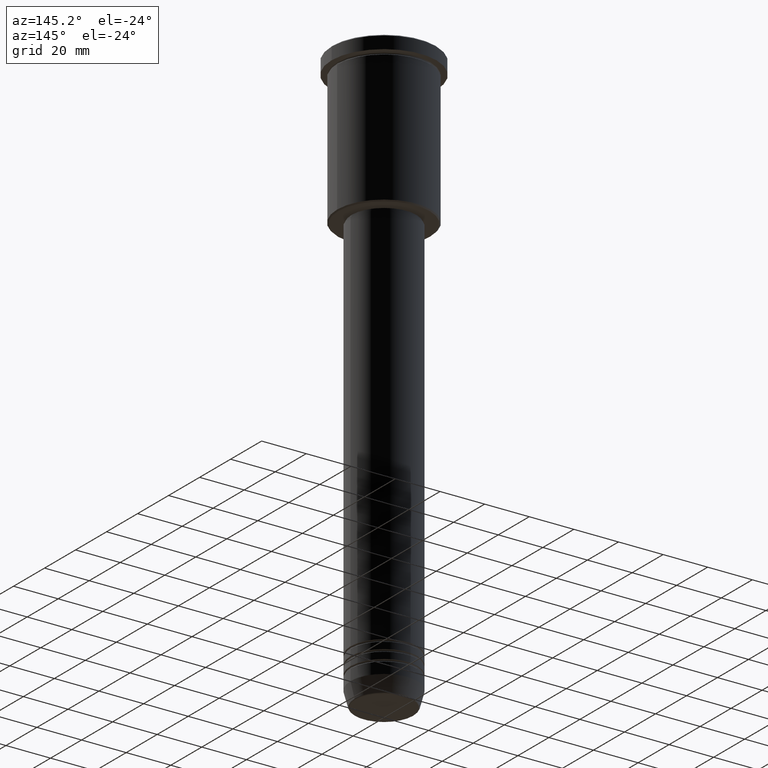
[diagram: clean part render]
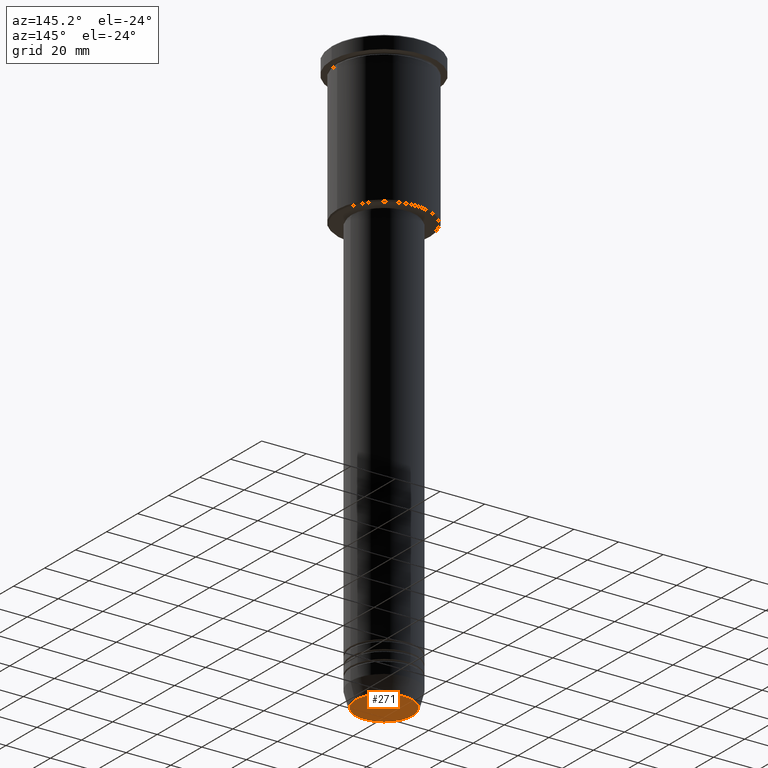
[diagram: same view with one face highlighted and labeled with its STEP entity id]
A machine part, auxiliary view. The second image highlights one B-rep face of the part: STEP entity #271.
In plain terms, the highlighted planar face has unit normal (0, -0, 1).
Its self-contained STEP definition (entity closure, byte-faithful):
#116 = CIRCLE ( 'NONE', #782, 12.74069215899265828 ) ;
#154 = EDGE_LOOP ( 'NONE', ( #1033, #925 ) ) ;
#179 = VERTEX_POINT ( 'NONE', #810 ) ;
#271 = ADVANCED_FACE ( 'NONE', ( #714 ), #898, .F. ) ;
#307 = DIRECTION ( 'NONE',  ( 0.000000000000000000, 0.000000000000000000, -1.000000000000000000 ) ) ;
#358 = CARTESIAN_POINT ( 'NONE',  ( 12.74069215899265828, 0.000000000000000000, -261.0000000000000000 ) ) ;
#439 = CARTESIAN_POINT ( 'NONE',  ( 0.000000000000000000, 0.000000000000000000, -261.0000000000000000 ) ) ;
#514 = VERTEX_POINT ( 'NONE', #358 ) ;
#529 = AXIS2_PLACEMENT_3D ( 'NONE', #439, #1107, #1090 ) ;
#644 = EDGE_CURVE ( 'NONE', #179, #514, #116, .T. ) ;
#714 = FACE_OUTER_BOUND ( 'NONE', #154, .T. ) ;
#715 = CARTESIAN_POINT ( 'NONE',  ( 0.000000000000000000, 0.000000000000000000, -261.0000000000000000 ) ) ;
#782 = AXIS2_PLACEMENT_3D ( 'NONE', #715, #904, #893 ) ;
#792 = EDGE_CURVE ( 'NONE', #514, #179, #1094, .T. ) ;
#810 = CARTESIAN_POINT ( 'NONE',  ( -12.74069215899265828, 1.589857736427680246E-15, -261.0000000000000000 ) ) ;
#854 = CARTESIAN_POINT ( 'NONE',  ( 0.000000000000000000, 0.000000000000000000, -261.0000000000000000 ) ) ;
#893 = DIRECTION ( 'NONE',  ( 1.000000000000000000, 0.000000000000000000, 0.000000000000000000 ) ) ;
#898 = PLANE ( 'NONE',  #529 ) ;
#904 = DIRECTION ( 'NONE',  ( 0.000000000000000000, 0.000000000000000000, -1.000000000000000000 ) ) ;
#925 = ORIENTED_EDGE ( 'NONE', *, *, #644, .T. ) ;
#930 = DIRECTION ( 'NONE',  ( 1.000000000000000000, 0.000000000000000000, 0.000000000000000000 ) ) ;
#1033 = ORIENTED_EDGE ( 'NONE', *, *, #792, .T. ) ;
#1090 = DIRECTION ( 'NONE',  ( 1.000000000000000000, 0.000000000000000000, 0.000000000000000000 ) ) ;
#1094 = CIRCLE ( 'NONE', #1183, 12.74069215899265828 ) ;
#1107 = DIRECTION ( 'NONE',  ( 0.000000000000000000, -0.000000000000000000, 1.000000000000000000 ) ) ;
#1183 = AXIS2_PLACEMENT_3D ( 'NONE', #854, #307, #930 ) ;